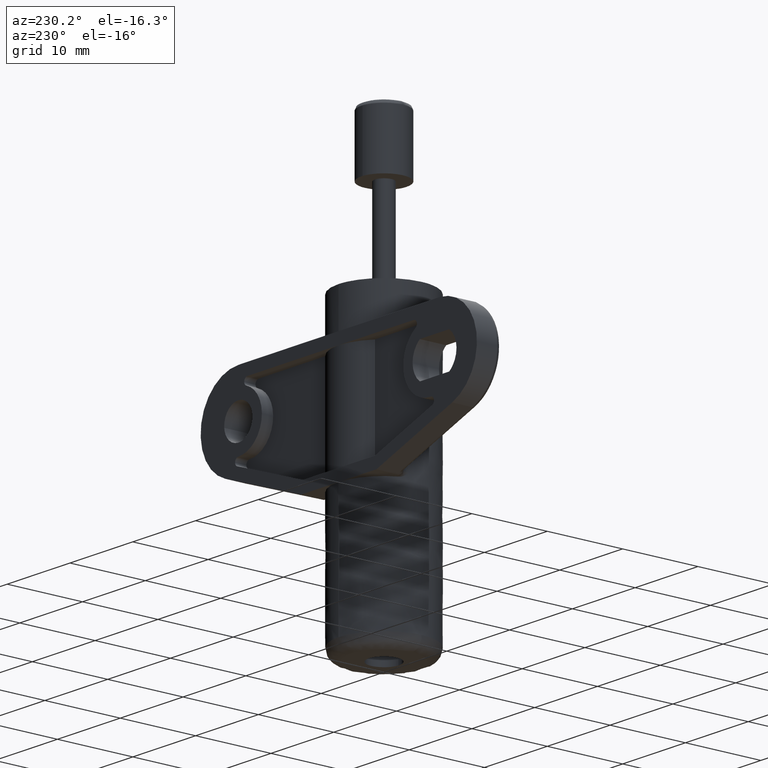
[diagram: clean part render]
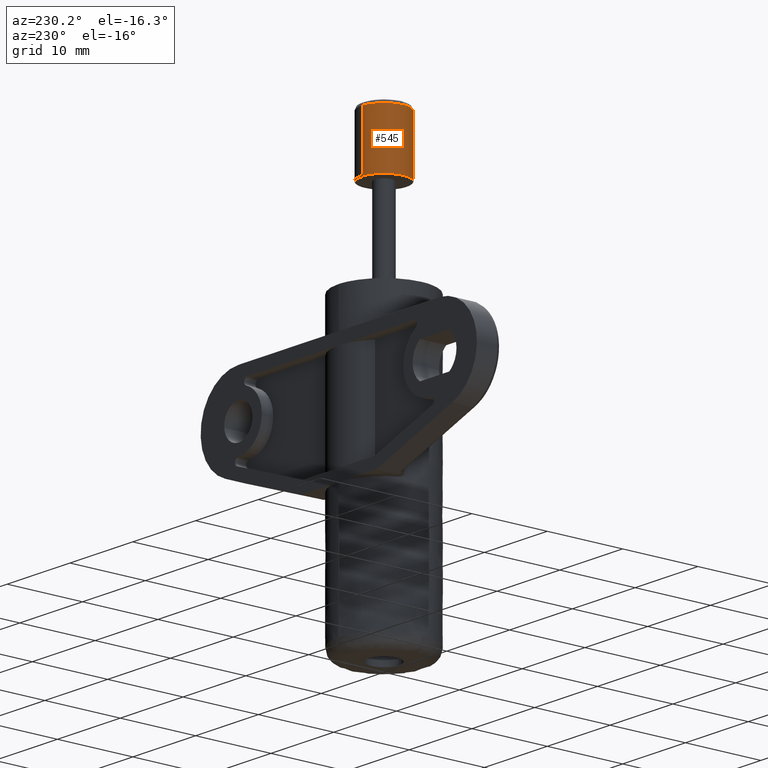
[diagram: same view with one face highlighted and labeled with its STEP entity id]
A machine part, auxiliary view. The second image highlights one B-rep face of the part: STEP entity #545.
In plain terms, the highlighted face is a freeform B-spline surface patch.
Its self-contained STEP definition (entity closure, byte-faithful):
#295=CARTESIAN_POINT('',(-2.999999999999999,-2.212770E-016,19.499998768775910));
#296=VERTEX_POINT('',#295);
#326=CARTESIAN_POINT('',(-0.183140660554150,2.994404698504715,19.499998768690300));
#327=VERTEX_POINT('',#326);
#343=CARTESIAN_POINT('',(-2.999999999999999,-2.212770E-016,19.499998768775910));
#344=CARTESIAN_POINT('',(-2.999999999999873,2.822122882233970,19.499998768775843));
#345=CARTESIAN_POINT('',(-0.183140660554150,2.994404698504715,19.499998768690308));
#353=(BOUNDED_CURVE()B_SPLINE_CURVE(2,(#343,#344,#345),.UNSPECIFIED.,.F.,.U.)B_SPLINE_CURVE_WITH_KNOTS((3,3),(0.0,0.239333247940142),.UNSPECIFIED.)CURVE()GEOMETRIC_REPRESENTATION_ITEM()RATIONAL_B_SPLINE_CURVE((1.0,0.719603658566935,0.976072653979537))REPRESENTATION_ITEM(''));
#354=EDGE_CURVE('',#296,#327,#353,.T.);
#389=CARTESIAN_POINT('',(0.183140660554150,-2.994404698504715,19.499998768679220));
#390=VERTEX_POINT('',#389);
#391=CARTESIAN_POINT('',(0.183140660554150,-2.994404698504715,19.499998768679220));
#392=CARTESIAN_POINT('',(0.091655803919678,-2.999999999995954,19.499998768682001));
#393=CARTESIAN_POINT('',(-2.430074E-013,-2.999999999996016,19.499998768684790));
#394=CARTESIAN_POINT('',(-3.000000000000118,-2.999999999998068,19.499998768775932));
#395=CARTESIAN_POINT('',(-2.999999999999999,-2.212770E-016,19.499998768775910));
#403=(BOUNDED_CURVE()B_SPLINE_CURVE(2,(#391,#392,#393,#394,#395),.UNSPECIFIED.,.F.,.U.)B_SPLINE_CURVE_WITH_KNOTS((3,2,3),(0.739333247940142,0.750000000000000,1.0),.UNSPECIFIED.)CURVE()GEOMETRIC_REPRESENTATION_ITEM()RATIONAL_B_SPLINE_CURVE((0.976072653979537,0.987503122619612,1.0,0.707106781186548,1.0))REPRESENTATION_ITEM(''));
#404=EDGE_CURVE('',#390,#296,#403,.T.);
#444=CARTESIAN_POINT('',(0.183140720439430,-2.994404694842173,11.999998768411301));
#445=VERTEX_POINT('',#444);
#446=CARTESIAN_POINT('',(0.183140660554150,-2.994404698504715,19.499998768679220));
#447=CARTESIAN_POINT('',(0.183140720439430,-2.994404694842173,11.999998768411301));
#448=QUASI_UNIFORM_CURVE('',1,(#446,#447),.UNSPECIFIED.,.F.,.U.);
#449=EDGE_CURVE('',#390,#445,#448,.T.);
#466=CARTESIAN_POINT('',(-0.183140720439430,2.994404694842173,11.999998768411301));
#467=VERTEX_POINT('',#466);
#483=CARTESIAN_POINT('',(-0.183140660554150,2.994404698504715,19.499998768690300));
#484=CARTESIAN_POINT('',(-0.183140720439430,2.994404694842173,11.999998768411301));
#485=QUASI_UNIFORM_CURVE('',1,(#483,#484),.UNSPECIFIED.,.F.,.U.);
#486=EDGE_CURVE('',#327,#467,#485,.T.);
#491=CARTESIAN_POINT('',(0.183145618604571,-2.994404395265600,19.687498768785030));
#492=CARTESIAN_POINT('',(-2.811258776661029,-3.177550013870171,19.687498768785026));
#493=CARTESIAN_POINT('',(-2.994404395265600,-0.183145618604571,19.687498768785030));
#494=CARTESIAN_POINT('',(-3.177550013870171,2.811258776661029,19.687498768785026));
#495=CARTESIAN_POINT('',(-0.183145618604571,2.994404395265600,19.687498768785030));
#496=CARTESIAN_POINT('',(0.183145618604571,-2.994404395265600,11.807811268401950));
#497=CARTESIAN_POINT('',(-2.811258776661029,-3.177550013870171,11.807811268401952));
#498=CARTESIAN_POINT('',(-2.994404395265600,-0.183145618604571,11.807811268401950));
#499=CARTESIAN_POINT('',(-3.177550013870171,2.811258776661029,11.807811268401952));
#500=CARTESIAN_POINT('',(-0.183145618604571,2.994404395265600,11.807811268401950));
#508=(BOUNDED_SURFACE()B_SPLINE_SURFACE(2,1,((#491,#496),(#492,#497),(#493,#498),(#494,#499),(#495,#500)),.UNSPECIFIED.,.F.,.F.,.U.)B_SPLINE_SURFACE_WITH_KNOTS((3,2,3),(2,2),(0.0,4.970562748477139,9.941125496954278),(0.0,7.879687500383076),.UNSPECIFIED.)GEOMETRIC_REPRESENTATION_ITEM()RATIONAL_B_SPLINE_SURFACE(((1.0,1.0),(0.707106781186548,0.707106781186548),(1.0,1.0),(0.707106781186548,0.707106781186548),(1.0,1.0)))REPRESENTATION_ITEM('')SURFACE());
#509=ORIENTED_EDGE('',*,*,#354,.T.);
#510=ORIENTED_EDGE('',*,*,#486,.T.);
#511=CARTESIAN_POINT('',(-3.0,0.0,11.999998768411301));
#512=VERTEX_POINT('',#511);
#513=CARTESIAN_POINT('',(-3.0,0.0,11.999998768411301));
#514=CARTESIAN_POINT('',(-2.999999999999877,2.822122825688756,11.999998768411301));
#515=CARTESIAN_POINT('',(-0.183140720439430,2.994404694842173,11.999998768411304));
#523=(BOUNDED_CURVE()B_SPLINE_CURVE(2,(#513,#514,#515),.UNSPECIFIED.,.F.,.U.)B_SPLINE_CURVE_WITH_KNOTS((3,3),(0.0,0.239333244489366),.UNSPECIFIED.)CURVE()GEOMETRIC_REPRESENTATION_ITEM()RATIONAL_B_SPLINE_CURVE((1.0,0.719603662609770,0.976072646583850))REPRESENTATION_ITEM(''));
#524=EDGE_CURVE('',#512,#467,#523,.T.);
#525=ORIENTED_EDGE('',*,*,#524,.F.);
#526=CARTESIAN_POINT('',(0.183140720439430,-2.994404694842173,11.999998768411304));
#527=CARTESIAN_POINT('',(0.091655833946273,-2.999999999996052,11.999998768411295));
#528=CARTESIAN_POINT('',(-2.370888E-013,-2.999999999996112,11.999998768411301));
#529=CARTESIAN_POINT('',(-3.000000000000115,-2.999999999998117,11.999998768411299));
#530=CARTESIAN_POINT('',(-3.0,0.0,11.999998768411301));
#538=(BOUNDED_CURVE()B_SPLINE_CURVE(2,(#526,#527,#528,#529,#530),.UNSPECIFIED.,.F.,.U.)B_SPLINE_CURVE_WITH_KNOTS((3,2,3),(0.739333244489366,0.750000000000000,1.0),.UNSPECIFIED.)CURVE()GEOMETRIC_REPRESENTATION_ITEM()RATIONAL_B_SPLINE_CURVE((0.976072646583850,0.987503118576777,1.0,0.707106781186548,1.0))REPRESENTATION_ITEM(''));
#539=EDGE_CURVE('',#445,#512,#538,.T.);
#540=ORIENTED_EDGE('',*,*,#539,.F.);
#541=ORIENTED_EDGE('',*,*,#449,.F.);
#542=ORIENTED_EDGE('',*,*,#404,.T.);
#543=EDGE_LOOP('',(#509,#510,#525,#540,#541,#542));
#544=FACE_OUTER_BOUND('',#543,.T.);
#545=ADVANCED_FACE('',(#544),#508,.T.);